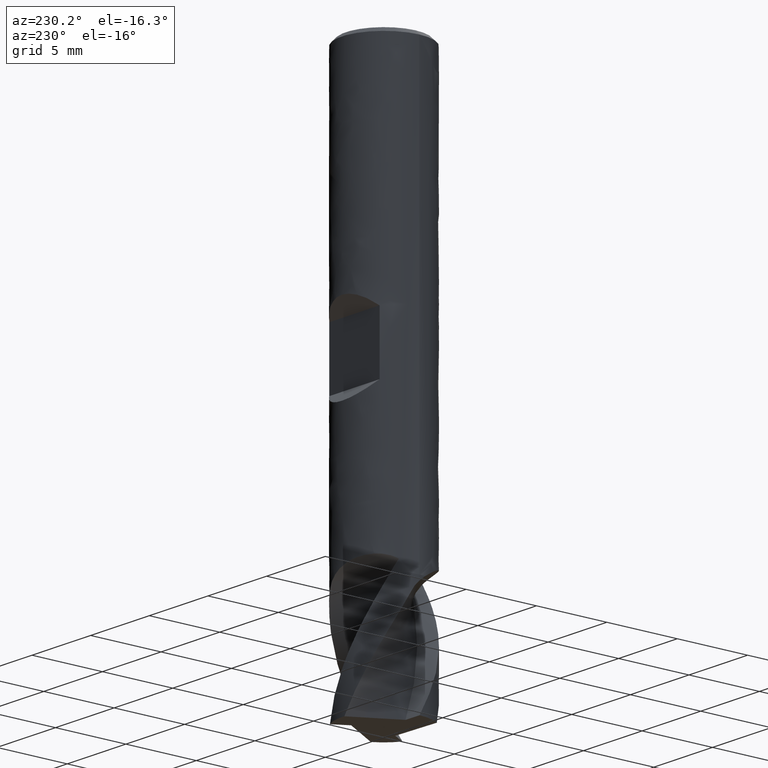
[diagram: clean part render]
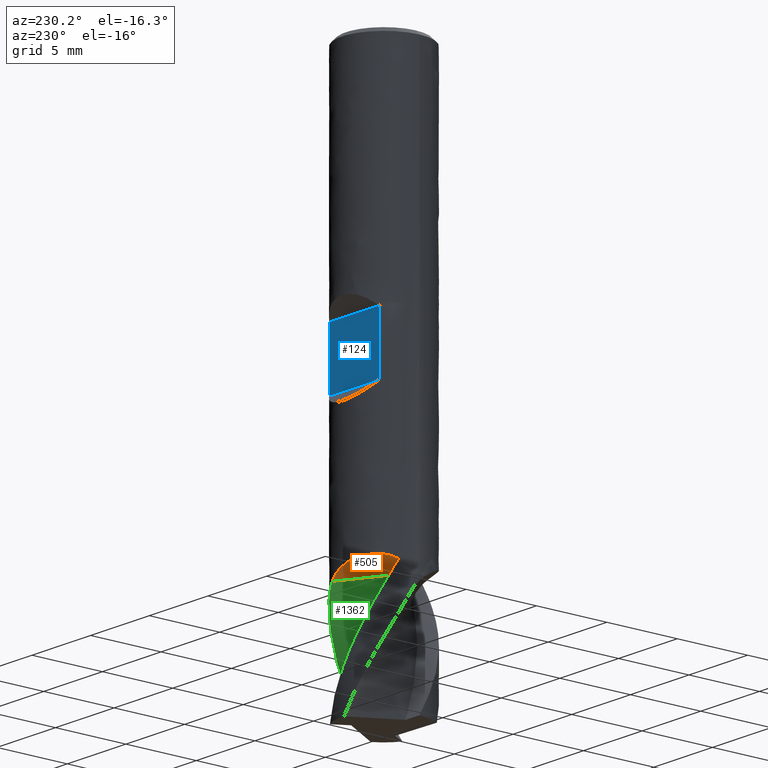
[diagram: same view with three faces highlighted in distinct colors, each labeled with its STEP entity id]
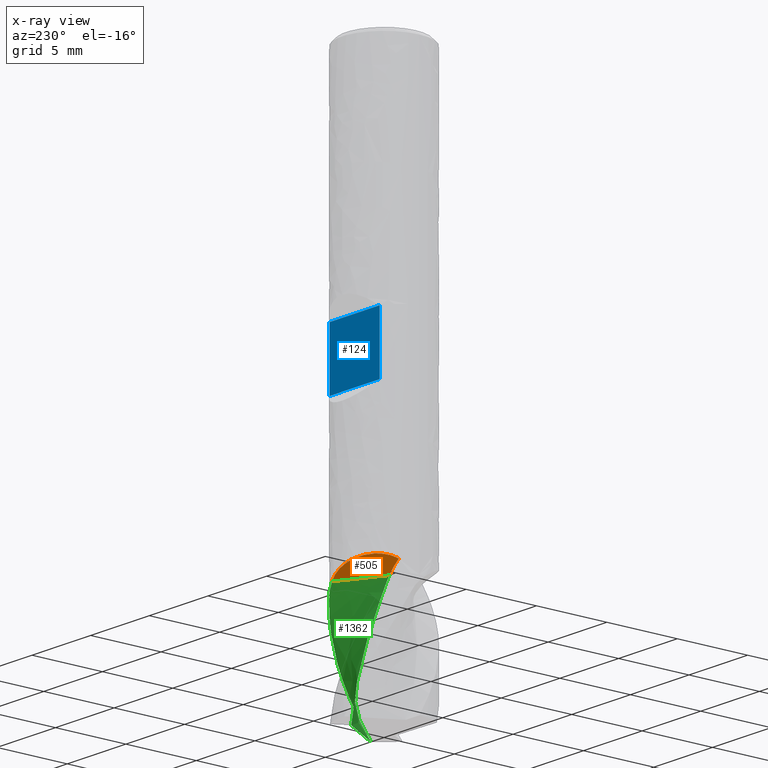
[diagram: x-ray of the same camera — body ghosted, the three highlighted faces saturated]
A machine part, auxiliary view with three faces highlighted in distinct colors.
The next image is the same camera in x-ray (body ghosted, the three faces saturated) — at least one of them is partly hidden behind the body in this view.
Their STEP definitions:

[orange] entity #505 — the highlighted face is a freeform B-spline surface patch.
#505 = ADVANCED_FACE('', (#506), #624, .T.);
#506 = FACE_OUTER_BOUND('', #507, .T.);
#507 = EDGE_LOOP('', (#508, #518, #527, #554, #563));
#508 = ORIENTED_EDGE('', *, *, #509, .T.);
#509 = EDGE_CURVE('', #510, #512, #514, .T.);
#510 = VERTEX_POINT('', #511);
#511 = CARTESIAN_POINT('', (1.08421758981709, 2.79722580746196, -31.));
#512 = VERTEX_POINT('', #513);
#513 = CARTESIAN_POINT('', (-1.84264580284255, 1.15677394449291, -31.));
#514 = LINE('', #515, #516);
#515 = CARTESIAN_POINT('', (1.08421758981709, 2.79722580746197, -31.));
#516 = VECTOR('', #517, 3.35523644979154);
#517 = DIRECTION('', (-2.92686339265964, -1.64045186296905, 0.));
#518 = ORIENTED_EDGE('', *, *, #519, .T.);
#519 = EDGE_CURVE('', #512, #520, #522, .T.);
#520 = VERTEX_POINT('', #521);
#521 = CARTESIAN_POINT('', (-2.73845348417943, 1.2251010223592, -30.2665562515059));
#522 = B_SPLINE_CURVE_WITH_KNOTS('', 3, (#523, #524, #525, #526), .UNSPECIFIED., .F., .U., (4, 4), (8.05, 8.78344374849406), .UNSPECIFIED.);
#523 = CARTESIAN_POINT('', (-1.84264580284255, 1.15677394449291, -31.));
#524 = CARTESIAN_POINT('', (-2.06418426553884, 1.17639858397631, -30.755518750502));
#525 = CARTESIAN_POINT('', (-2.35910194591767, 1.20854480990274, -30.511037501004));
#526 = CARTESIAN_POINT('', (-2.73845348417943, 1.2251010223592, -30.2665562515059));
#527 = ORIENTED_EDGE('', *, *, #528, .F.);
#528 = EDGE_CURVE('', #529, #520, #531, .T.);
#529 = VERTEX_POINT('', #530);
#530 = CARTESIAN_POINT('', (-1.93987165413749, 2.28842696310673, -30.));
#531 = B_SPLINE_CURVE_WITH_KNOTS('', 3, (#532, #533, #534, #535, #536, #537, #538, #539, #540, #541, #542, #543, #544, #545, #546, #547, #548, #549, #550, #551, #552, #553), .UNSPECIFIED., .F., .U., (4, 3, 3, 3, 3, 3, 3, 4), (0., 0.197226016520918, 0.393899486518892, 0.589971139167342, 0.785395426689096, 0.980136575221331, 1.17417893195694, 1.37790835287652), .UNSPECIFIED.);
#532 = CARTESIAN_POINT('', (-1.93987165413701, 2.28842696310714, -30.));
#533 = CARTESIAN_POINT('', (-1.99002021506912, 2.24591663902152, -30.0000739638594));
#534 = CARTESIAN_POINT('', (-2.03880853208514, 2.20172025702368, -30.0016086628134));
#535 = CARTESIAN_POINT('', (-2.08600341156098, 2.15605885053168, -30.0047216351087));
#536 = CARTESIAN_POINT('', (-2.13306607031353, 2.1105253685997, -30.0078258861306));
#537 = CARTESIAN_POINT('', (-2.17862158984341, 2.06345948129692, -30.0125046488564));
#538 = CARTESIAN_POINT('', (-2.22244796577227, 2.01512407544417, -30.0188894365669));
#539 = CARTESIAN_POINT('', (-2.26614023376374, 1.96693657508084, -30.0252546869396));
#540 = CARTESIAN_POINT('', (-2.30818948519674, 1.91740302058549, -30.0333265708887));
#541 = CARTESIAN_POINT('', (-2.34838810392225, 1.86683510609707, -30.0432524442842));
#542 = CARTESIAN_POINT('', (-2.38845399982142, 1.81643415049296, -30.0531455456589));
#543 = CARTESIAN_POINT('', (-2.42675500157084, 1.76491182133365, -30.0648987359457));
#544 = CARTESIAN_POINT('', (-2.46310158035882, 1.7126384921617, -30.0786766553282));
#545 = CARTESIAN_POINT('', (-2.49932110347004, 1.66054789334391, -30.0924064116393));
#546 = CARTESIAN_POINT('', (-2.53367132716824, 1.60760686385268, -30.1081743241931));
#547 = CARTESIAN_POINT('', (-2.56598521910623, 1.55425861919063, -30.1261623126092));
#548 = CARTESIAN_POINT('', (-2.59818315875179, 1.50110180461931, -30.1440857545295));
#549 = CARTESIAN_POINT('', (-2.62842895640027, 1.44742314046868, -30.164253189356));
#550 = CARTESIAN_POINT('', (-2.65658352480675, 1.39375893745129, -30.1868602151535));
#551 = CARTESIAN_POINT('', (-2.68614363742436, 1.33741568750953, -30.2105958384057));
#552 = CARTESIAN_POINT('', (-2.71346986001599, 1.28094661499943, -30.2370803259147));
#553 = CARTESIAN_POINT('', (-2.73845348417943, 1.2251010223592, -30.2665562515059));
#554 = ORIENTED_EDGE('', *, *, #555, .T.);
#555 = EDGE_CURVE('', #529, #556, #558, .T.);
#556 = VERTEX_POINT('', #557);
#557 = CARTESIAN_POINT('', (-1.93223280841265, 2.29488047054608, -30.));
#558 = CIRCLE('', #559, 3.);
#559 = AXIS2_PLACEMENT_3D('', #560, #561, #562);
#560 = CARTESIAN_POINT('', (-3.88578058618805E-16, 3.66883818935254E-15, -30.));
#561 = DIRECTION('', (3.74939945665464E-33, 6.12323399573677E-17, -1.));
#562 = DIRECTION('', (-1., -5.49390323586469E-16, -3.73898545197895E-32));
#563 = ORIENTED_EDGE('', *, *, #564, .T.);
#564 = EDGE_CURVE('', #556, #510, #565, .T.);
#565 = B_SPLINE_CURVE_WITH_KNOTS('', 3, (#566, #567, #568, #569, #570, #571, #572, #573, #574, #575, #576, #577, #578, #579, #580, #581, #582, #583, #584, #585, #586, #587, #588, #589, #590, #591, #592, #593, #594, #595, #596, #597, #598, #599, #600, #601, #602, #603, #604, #605, #606, #607, #608, #609, #610, #611, #612, #613, #614, #615, #616, #617, #618, #619, #620, #621, #622, #623), .UNSPECIFIED., .F., .U., (4, 3, 3, 3, 3, 3, 3, 3, 3, 3, 3, 3, 3, 3, 3, 3, 3, 3, 3, 4), (0., 0.196949325699326, 0.393389740212816, 0.589376722615618, 0.784961097838079, 0.980189460863168, 1.17510476218451, 1.36974696426702, 1.56415372783119, 1.75836111360703, 1.95240429971611, 2.14631832226932, 2.17222899204661, 2.36818907634758, 2.56401604487721, 2.75974978795876, 2.95543214839418, 3.15110755260272, 3.34682345938829, 3.40503989997963), .UNSPECIFIED.);
#566 = CARTESIAN_POINT('', (-1.93223280841116, 2.29488047054733, -30.));
#567 = CARTESIAN_POINT('', (-1.88201337775353, 2.33716399371194, -30.0000737656396));
#568 = CARTESIAN_POINT('', (-1.83036700808109, 2.37782637253965, -30.0015986456456));
#569 = CARTESIAN_POINT('', (-1.77753266000532, 2.41668732826868, -30.0044710612479));
#570 = CARTESIAN_POINT('', (-1.7248348343098, 2.4554478684467, -30.0073360546139));
#571 = CARTESIAN_POINT('', (-1.6708767366246, 2.492474420513, -30.0115459521142));
#572 = CARTESIAN_POINT('', (-1.61589940325674, 2.52762123716243, -30.0170087892969));
#573 = CARTESIAN_POINT('', (-1.56104897090551, 2.56268692643644, -30.0224590169267));
#574 = CARTESIAN_POINT('', (-1.50510607342435, 2.59593172509582, -30.0291642053448));
#575 = CARTESIAN_POINT('', (-1.44831192598942, 2.62724048481231, -30.0370422670829));
#576 = CARTESIAN_POINT('', (-1.39163444819896, 2.65848492836191, -30.0449041452756));
#577 = CARTESIAN_POINT('', (-1.3340321273285, 2.68784406254134, -30.0539448233842));
#578 = CARTESIAN_POINT('', (-1.27574475394404, 2.71523025225933, -30.064090738168));
#579 = CARTESIAN_POINT('', (-1.21756347807302, 2.74256659230212, -30.074218184864));
#580 = CARTESIAN_POINT('', (-1.15862373546572, 2.76797306511693, -30.0854600998782));
#581 = CARTESIAN_POINT('', (-1.0991625345947, 2.79138706068209, -30.0977504183503));
#582 = CARTESIAN_POINT('', (-1.03979668372592, 2.81476351034341, -30.1100210284769));
#583 = CARTESIAN_POINT('', (-0.979836640197697, 2.83618336451075, -30.1233520916197));
#584 = CARTESIAN_POINT('', (-0.919515487496237, 2.85560698770937, -30.1376842903214));
#585 = CARTESIAN_POINT('', (-0.859278851817177, 2.8750033961297, -30.1519964079288));
#586 = CARTESIAN_POINT('', (-0.798609505705072, 2.89243271228278, -30.1673241312462));
#587 = CARTESIAN_POINT('', (-0.737735659062085, 2.90787656157345, -30.1836143725557));
#588 = CARTESIAN_POINT('', (-0.676935445208425, 2.92330173003871, -30.199884909247));
#589 = CARTESIAN_POINT('', (-0.615860666023498, 2.93676427451604, -30.2171345305675));
#590 = CARTESIAN_POINT('', (-0.554733891839468, 2.94826564428049, -30.2353160641235));
#591 = CARTESIAN_POINT('', (-0.493669807455014, 2.95975521858256, -30.2534789512402));
#592 = CARTESIAN_POINT('', (-0.432485552663782, 2.96930060525954, -30.27259215134));
#593 = CARTESIAN_POINT('', (-0.371397470936242, 2.97692188654358, -30.2926142773561));
#594 = CARTESIAN_POINT('', (-0.310361038339465, 2.98453672413938, -30.3126194749407));
#595 = CARTESIAN_POINT('', (-0.249354795798488, 2.99023901783103, -30.3335536252406));
#596 = CARTESIAN_POINT('', (-0.188588455718147, 2.99406653138668, -30.3553811729584));
#597 = CARTESIAN_POINT('', (-0.127862564347802, 2.99789149718339, -30.3771941913143));
#598 = CARTESIAN_POINT('', (-0.0673130383891198, 2.99984823593763, -30.3999221023944));
#599 = CARTESIAN_POINT('', (-0.00714275278846962, 2.99999149683544, -30.4235354084508));
#600 = CARTESIAN_POINT('', (0.000897162943648185, 3.00001063926654, -30.4266906035601));
#601 = CARTESIAN_POINT('', (0.00893093922448734, 2.99999744595069, -30.4298618506688));
#602 = CARTESIAN_POINT('', (0.0169581010594698, 2.9999520700852, -30.4330490879514));
#603 = CARTESIAN_POINT('', (0.0776668099967913, 2.99960889646199, -30.457153879219));
#604 = CARTESIAN_POINT('', (0.138031302170571, 2.99742243499334, -30.4821869919228));
#605 = CARTESIAN_POINT('', (0.197849885454055, 2.99346879436313, -30.5081256096722));
#606 = CARTESIAN_POINT('', (0.25762783394764, 2.98951783944273, -30.5340466073072));
#607 = CARTESIAN_POINT('', (0.316919877197871, 2.98379821308459, -30.5608975068512));
#608 = CARTESIAN_POINT('', (0.375531303772091, 2.97640323879129, -30.5886630668026));
#609 = CARTESIAN_POINT('', (0.434114827772187, 2.96901178495177, -30.6164154086728));
#610 = CARTESIAN_POINT('', (0.492074757108199, 2.95993945261082, -30.6451081423841));
#611 = CARTESIAN_POINT('', (0.549222585152999, 2.94929729799454, -30.6747345773417));
#612 = CARTESIAN_POINT('', (0.606355411151758, 2.93865793708186, -30.7043532349759));
#613 = CARTESIAN_POINT('', (0.662730180097242, 2.92643953176924, -30.7349327509286));
#614 = CARTESIAN_POINT('', (0.718163266229727, 2.91277213716389, -30.7664763077004));
#615 = CARTESIAN_POINT('', (0.773594381795612, 2.89910522841478, -30.7980187431441));
#616 = CARTESIAN_POINT('', (0.828134990540157, 2.88397670385231, -30.8305540197396));
#617 = CARTESIAN_POINT('', (0.88160422334987, 2.86753796720666, -30.8640969367504));
#618 = CARTESIAN_POINT('', (0.935084523680966, 2.85109582793, -30.8976467967624));
#619 = CARTESIAN_POINT('', (0.987542013814842, 2.83332764354849, -30.9322351511996));
#620 = CARTESIAN_POINT('', (1.03879523741967, 2.81441014330077, -30.9678906532829));
#621 = CARTESIAN_POINT('', (1.05404070364727, 2.80878306092715, -30.9784965179409));
#622 = CARTESIAN_POINT('', (1.06918465658113, 2.8030526415336, -30.989200389604));
#623 = CARTESIAN_POINT('', (1.08421758981709, 2.79722580746196, -31.));
#624 = B_SPLINE_SURFACE_WITH_KNOTS('', 3, 1, ((#625, #626), (#627, #628), (#629, #630), (#631, #632)), .UNSPECIFIED., .F., .F., .U., (4, 4), (2, 2), (8.04999999999996, 9.05), (0., 0.738473241205311), .UNSPECIFIED.);
#625 = CARTESIAN_POINT('', (-1.84264580284251, 1.15677394449291, -31.));
#626 = CARTESIAN_POINT('', (1.0842175898171, 2.79722580746191, -31.));
#627 = CARTESIAN_POINT('', (-2.14469822765513, 1.18353078784141, -30.6666666666667));
#628 = CARTESIAN_POINT('', (1.04144802169509, 3.2131624321148, -30.6666666666667));
#629 = CARTESIAN_POINT('', (-2.58315853106369, 1.23356456296016, -30.3333333333333));
#630 = CARTESIAN_POINT('', (0.994518027167603, 3.81986480571484, -30.3333333333333));
#631 = CARTESIAN_POINT('', (-3.18604516772584, 1.23562522704, -30.));
#632 = CARTESIAN_POINT('', (0.839636905511188, 4.63663241371392, -30.));

[blue] entity #124 — the highlighted planar face has unit normal (0, 1, 0).
#124 = ADVANCED_FACE('', (#125), #159, .T.);
#125 = FACE_OUTER_BOUND('', #126, .T.);
#126 = EDGE_LOOP('', (#127, #137, #145, #153));
#127 = ORIENTED_EDGE('', *, *, #128, .T.);
#128 = EDGE_CURVE('', #129, #131, #133, .T.);
#129 = VERTEX_POINT('', #130);
#130 = CARTESIAN_POINT('', (2.14242852856286, 2.1, -15.9));
#131 = VERTEX_POINT('', #132);
#132 = CARTESIAN_POINT('', (2.14242852856286, 2.1, -20.1));
#133 = LINE('', #134, #135);
#134 = CARTESIAN_POINT('', (2.14242852856286, 2.1, -15.9));
#135 = VECTOR('', #136, 4.2);
#136 = DIRECTION('', (0., 4.44089209850063E-16, -4.2));
#137 = ORIENTED_EDGE('', *, *, #138, .T.);
#138 = EDGE_CURVE('', #131, #139, #141, .T.);
#139 = VERTEX_POINT('', #140);
#140 = CARTESIAN_POINT('', (-2.14242852856286, 2.1, -20.1));
#141 = LINE('', #142, #143);
#142 = CARTESIAN_POINT('', (2.14242852856286, 2.1, -20.1));
#143 = VECTOR('', #144, 4.28485705712571);
#144 = DIRECTION('', (-4.28485705712571, 4.44089209850063E-16, 0.));
#145 = ORIENTED_EDGE('', *, *, #146, .F.);
#146 = EDGE_CURVE('', #147, #139, #149, .T.);
#147 = VERTEX_POINT('', #148);
#148 = CARTESIAN_POINT('', (-2.14242852856286, 2.1, -15.9));
#149 = LINE('', #150, #151);
#150 = CARTESIAN_POINT('', (-2.14242852856286, 2.1, -15.9));
#151 = VECTOR('', #152, 4.2);
#152 = DIRECTION('', (-8.88178419700125E-16, 4.44089209850063E-16, -4.2));
#153 = ORIENTED_EDGE('', *, *, #154, .F.);
#154 = EDGE_CURVE('', #129, #147, #155, .T.);
#155 = LINE('', #156, #157);
#156 = CARTESIAN_POINT('', (2.14242852856286, 2.1, -15.9));
#157 = VECTOR('', #158, 4.28485705712571);
#158 = DIRECTION('', (-4.28485705712571, 4.44089209850063E-16, 0.));
#159 = PLANE('', #160);
#160 = AXIS2_PLACEMENT_3D('', #161, #162, #163);
#161 = CARTESIAN_POINT('', (3., 2.1, -20.1));
#162 = DIRECTION('', (7.40148683083438E-17, 1., 1.05735526154777E-16));
#163 = DIRECTION('', (-1., 7.40148683083438E-17, 0.));

[green] entity #1362 — the highlighted face is a freeform B-spline surface patch.
#971 = VERTEX_POINT('', #972);
#972 = CARTESIAN_POINT('', (-1.84264580284255, 1.15677394449291, -31.));
#1040 = VERTEX_POINT('', #1041);
#1041 = CARTESIAN_POINT('', (1.08421758981709, 2.79722580746196, -31.));
#1048 = EDGE_CURVE('', #1040, #971, #1049, .T.);
#1049 = LINE('', #1050, #1051);
#1050 = CARTESIAN_POINT('', (1.08421758981709, 2.79722580746197, -31.));
#1051 = VECTOR('', #1052, 3.35523644979154);
#1052 = DIRECTION('', (-2.92686339265964, -1.64045186296905, 0.));
#1299 = EDGE_CURVE('', #1300, #971, #1302, .T.);
#1300 = VERTEX_POINT('', #1301);
#1301 = CARTESIAN_POINT('', (0.893725716362672, 1.5826108539826, -39.));
#1302 = B_SPLINE_CURVE_WITH_KNOTS('', 3, (#1303, #1304, #1305, #1306, #1307, #1308, #1309, #1310, #1311, #1312, #1313, #1314, #1315, #1316, #1317, #1318, #1319), .UNSPECIFIED., .F., .U., (4, 1, 1, 1, 1, 1, 1, 1, 1, 1, 1, 1, 1, 1, 4), (0.0499999999999836, 1.13125, 1.696875, 2.2625, 2.828125, 3.39375, 3.959375, 4.525, 5.090625, 5.65625, 6.221875, 6.7875, 7.353125, 7.91875, 8.05), .UNSPECIFIED.);
#1303 = CARTESIAN_POINT('', (0.893725716362677, 1.5826108539826, -39.));
#1304 = CARTESIAN_POINT('', (0.783370736321726, 1.64103929327569, -38.6395833333333));
#1305 = CARTESIAN_POINT('', (0.607009209541451, 1.71316170886393, -38.090625));
#1306 = CARTESIAN_POINT('', (0.359884467490566, 1.77336629202861, -37.353125));
#1307 = CARTESIAN_POINT('', (0.166892573690512, 1.79983246189657, -36.7875));
#1308 = CARTESIAN_POINT('', (-0.0276296173809434, 1.80637262506078, -36.221875));
#1309 = CARTESIAN_POINT('', (-0.221747427467212, 1.79294764364282, -35.65625));
#1310 = CARTESIAN_POINT('', (-0.413514318157955, 1.75968575191094, -35.090625));
#1311 = CARTESIAN_POINT('', (-0.601066496960992, 1.70691093249699, -34.525));
#1312 = CARTESIAN_POINT('', (-0.782333878885828, 1.63503558672537, -33.959375));
#1313 = CARTESIAN_POINT('', (-0.956184014551469, 1.54495090074255, -33.39375));
#1314 = CARTESIAN_POINT('', (-1.11821742970047, 1.43655713291151, -32.828125));
#1315 = CARTESIAN_POINT('', (-1.27652393076581, 1.31423139807588, -32.2625));
#1316 = CARTESIAN_POINT('', (-1.36302406701288, 1.13552820727793, -31.696875));
#1317 = CARTESIAN_POINT('', (-1.60498516384665, 1.13674495452228, -31.2760416666667));
#1318 = CARTESIAN_POINT('', (-1.8030014220859, 1.15326210880342, -31.04375));
#1319 = CARTESIAN_POINT('', (-1.84264580284255, 1.15677394449291, -31.));
#1362 = ADVANCED_FACE('', (#1363), #1487, .T.);
#1363 = FACE_OUTER_BOUND('', #1364, .T.);
#1364 = EDGE_LOOP('', (#1365, #1366, #1480, #1486));
#1365 = ORIENTED_EDGE('', *, *, #1048, .F.);
#1366 = ORIENTED_EDGE('', *, *, #1367, .T.);
#1367 = EDGE_CURVE('', #1040, #1368, #1370, .T.);
#1368 = VERTEX_POINT('', #1369);
#1369 = CARTESIAN_POINT('', (2.69791948437325, -1.31195672788366, -39.));
#1370 = B_SPLINE_CURVE_WITH_KNOTS('', 3, (#1371, #1372, #1373, #1374, #1375, #1376, #1377, #1378, #1379, #1380, #1381, #1382, #1383, #1384, #1385, #1386, #1387, #1388, #1389, #1390, #1391, #1392, #1393, #1394, #1395, #1396, #1397, #1398, #1399, #1400, #1401, #1402, #1403, #1404, #1405, #1406, #1407, #1408, #1409, #1410, #1411, #1412, #1413, #1414, #1415, #1416, #1417, #1418, #1419, #1420, #1421, #1422, #1423, #1424, #1425, #1426, #1427, #1428, #1429, #1430, #1431, #1432, #1433, #1434, #1435, #1436, #1437, #1438, #1439, #1440, #1441, #1442, #1443, #1444, #1445, #1446, #1447, #1448, #1449, #1450, #1451, #1452, #1453, #1454, #1455, #1456, #1457, #1458, #1459, #1460, #1461, #1462, #1463, #1464, #1465, #1466, #1467, #1468, #1469, #1470, #1471, #1472, #1473, #1474, #1475, #1476, #1477, #1478, #1479), .UNSPECIFIED., .F., .U., (4, 3, 3, 3, 3, 3, 3, 3, 3, 3, 3, 3, 3, 3, 3, 3, 3, 3, 3, 3, 3, 3, 3, 3, 3, 3, 3, 3, 3, 3, 3, 3, 3, 3, 3, 3, 4), (3.40503989997963, 3.47761742576379, 3.60844895575092, 3.73933193930797, 3.87029548682506, 4.00135525134359, 4.13252397006161, 4.26380986134629, 4.39521366195404, 4.45361228317764, 4.54123511677125, 4.62883266868287, 4.71640572541453, 4.80395985829023, 4.89150456706646, 4.97905219120592, 5.11039865042747, 5.24182608262073, 5.37325321147449, 5.57039665974011, 5.76744650999015, 6.06284872158619, 6.35831367010135, 6.55534831111203, 6.99852828386313, 7.44154870593723, 7.88452144376341, 8.32742560285122, 8.99121331858849, 9.65475852505677, 10.0973570071098, 10.1362788338178, 10.8030576914267, 11.4695350922493, 12.135728580251, 12.8016524448311, 12.8710669454147), .UNSPECIFIED.);
#1371 = CARTESIAN_POINT('', (1.08421758981709, 2.79722580746196, -31.));
#1372 = CARTESIAN_POINT('', (1.1029589125167, 2.78996158457615, -31.0134637053384));
#1373 = CARTESIAN_POINT('', (1.12153627957443, 2.78254415764813, -31.0270823744474));
#1374 = CARTESIAN_POINT('', (1.13993452194367, 2.77498635774716, -31.0408541503128));
#1375 = CARTESIAN_POINT('', (1.17310002562038, 2.76136232587645, -31.0656797762574));
#1376 = CARTESIAN_POINT('', (1.20570355479477, 2.7472735123234, -31.0910175691423));
#1377 = CARTESIAN_POINT('', (1.23768759799336, 2.73278784573117, -31.1168838217919));
#1378 = CARTESIAN_POINT('', (1.2696842199121, 2.71829648219983, -31.1427602471503));
#1379 = CARTESIAN_POINT('', (1.30107479970759, 2.7034015576562, -31.1691767129285));
#1380 = CARTESIAN_POINT('', (1.33179824781887, 2.68818031893447, -31.1961536743672));
#1381 = CARTESIAN_POINT('', (1.36254060749969, 2.67294971090258, -31.2231472412559));
#1382 = CARTESIAN_POINT('', (1.39262918901622, 2.65738525087257, -31.2507142841181));
#1383 = CARTESIAN_POINT('', (1.42199744243549, 2.64157590723926, -31.2788796369141));
#1384 = CARTESIAN_POINT('', (1.45138727228068, 2.6257549487126, -31.3070656823826));
#1385 = CARTESIAN_POINT('', (1.48007046279382, 2.60968065287748, -31.3358648125052));
#1386 = CARTESIAN_POINT('', (1.50797186447845, 2.59345731716205, -31.3653068428102));
#1387 = CARTESIAN_POINT('', (1.53589646149611, 2.57722049446562, -31.3947733492224));
#1388 = CARTESIAN_POINT('', (1.56305374755022, 2.56082499643363, -31.4249000989683));
#1389 = CARTESIAN_POINT('', (1.58935513967613, 2.54439584970285, -31.4557223707851));
#1390 = CARTESIAN_POINT('', (1.61568002674544, 2.52795202687163, -31.4865721760317));
#1391 = CARTESIAN_POINT('', (1.64116497254438, 2.51146328233507, -31.5181386740175));
#1392 = CARTESIAN_POINT('', (1.6657004630433, 2.49508355920545, -31.5504624090808));
#1393 = CARTESIAN_POINT('', (1.69025798913986, 2.47868912526383, -31.5828151744511));
#1394 = CARTESIAN_POINT('', (1.71388452696581, 2.46239004933716, -31.6159523175281));
#1395 = CARTESIAN_POINT('', (1.73643797292068, 2.44638164769914, -31.6499173603208));
#1396 = CARTESIAN_POINT('', (1.74646120011437, 2.43926717628103, -31.6650121419003));
#1397 = CARTESIAN_POINT('', (1.75627512887817, 2.43220853861588, -31.6802750534202));
#1398 = CARTESIAN_POINT('', (1.76586435777499, 2.42522639560518, -31.6957097411725));
#1399 = CARTESIAN_POINT('', (1.78025229006366, 2.41475020383328, -31.7188683543067));
#1400 = CARTESIAN_POINT('', (1.79413751531616, 2.40444420297993, -31.7424251836869));
#1401 = CARTESIAN_POINT('', (1.80752463002917, 2.394338052957, -31.7663361736969));
#1402 = CARTESIAN_POINT('', (1.82090788217847, 2.38423481884606, -31.7902402647056));
#1403 = CARTESIAN_POINT('', (1.83379937453263, 2.37432693025387, -31.8145096354948));
#1404 = CARTESIAN_POINT('', (1.84622504425696, 2.36462535847868, -31.8390875642427));
#1405 = CARTESIAN_POINT('', (1.85864723935203, 2.35492649958463, -31.8636586201868));
#1406 = CARTESIAN_POINT('', (1.8706087562518, 2.34543023126228, -31.8885479063757));
#1407 = CARTESIAN_POINT('', (1.88216118375993, 2.33612270190336, -31.9136880515809));
#1408 = CARTESIAN_POINT('', (1.8937111148784, 2.32681718382909, -31.9388227641964));
#1409 = CARTESIAN_POINT('', (1.90485572031787, 2.31769762631606, -31.964215688841));
#1410 = CARTESIAN_POINT('', (1.91567370136932, 2.30872134955308, -31.989791949224));
#1411 = CARTESIAN_POINT('', (1.92649051800139, 2.29974603897322, -32.0153654566448));
#1412 = CARTESIAN_POINT('', (1.93698313269452, 2.2909121904901, -32.0411268731681));
#1413 = CARTESIAN_POINT('', (1.94725479477815, 2.28214784013077, -32.0669966069255));
#1414 = CARTESIAN_POINT('', (1.95752679892273, 2.27338319790612, -32.0928672021817));
#1415 = CARTESIAN_POINT('', (1.96757925098195, 2.26468697635725, -32.1188481695072));
#1416 = CARTESIAN_POINT('', (1.97753306738958, 2.25596165024602, -32.1448560710866));
#1417 = CARTESIAN_POINT('', (1.99246663701793, 2.24287116719149, -32.1838753570787));
#1418 = CARTESIAN_POINT('', (2.0071813304323, 2.22971552398983, -32.2229587495367));
#1419 = CARTESIAN_POINT('', (2.02210618048562, 2.21609715374617, -32.261800296501));
#1420 = CARTESIAN_POINT('', (2.03704023146806, 2.2024703879971, -32.3006657886519));
#1421 = CARTESIAN_POINT('', (2.05218667855315, 2.18837224897906, -32.3392871878382));
#1422 = CARTESIAN_POINT('', (2.06744272584587, 2.17386305349419, -32.3777056387576));
#1423 = CARTESIAN_POINT('', (2.08269873792705, 2.15935389149709, -32.4161240010057));
#1424 = CARTESIAN_POINT('', (2.09806610850816, 2.14443194936941, -32.4543440414873));
#1425 = CARTESIAN_POINT('', (2.11344890810348, 2.12916267880974, -32.4924156988913));
#1426 = CARTESIAN_POINT('', (2.13652342995181, 2.10625845289468, -32.5495239830582));
#1427 = CARTESIAN_POINT('', (2.15963461904569, 2.08256750563963, -32.606304639755));
#1428 = CARTESIAN_POINT('', (2.18248438617708, 2.05833959882557, -32.6629552347848));
#1429 = CARTESIAN_POINT('', (2.20532330489895, 2.03412319472194, -32.7195789337483));
#1430 = CARTESIAN_POINT('', (2.2279039257949, 2.0093667706988, -32.7760783494518));
#1431 = CARTESIAN_POINT('', (2.24994863706543, 1.98437172187255, -32.8326784551016));
#1432 = CARTESIAN_POINT('', (2.28299639860926, 1.94690103771391, -32.9175290467884));
#1433 = CARTESIAN_POINT('', (2.31486367558965, 1.90888614541008, -33.0026080361316));
#1434 = CARTESIAN_POINT('', (2.34565935826662, 1.87026259519252, -33.0877882974662));
#1435 = CARTESIAN_POINT('', (2.37646158126786, 1.83163084218415, -33.172986649211));
#1436 = CARTESIAN_POINT('', (2.40619770786897, 1.79238338704391, -33.2582997660662));
#1437 = CARTESIAN_POINT('', (2.43496673519197, 1.75240891304186, -33.3435894660158));
#1438 = CARTESIAN_POINT('', (2.45415173496708, 1.72575141551409, -33.4004660109187));
#1439 = CARTESIAN_POINT('', (2.47291471891139, 1.69875688494742, -33.4573295233247));
#1440 = CARTESIAN_POINT('', (2.49124273055466, 1.67143939688479, -33.5141755133861));
#1441 = CARTESIAN_POINT('', (2.53246699274013, 1.6099955636932, -33.6420363006934));
#1442 = CARTESIAN_POINT('', (2.57148164612261, 1.54691968751647, -33.7698545014037));
#1443 = CARTESIAN_POINT('', (2.6080597275569, 1.48257359260707, -33.8977012432056));
#1444 = CARTESIAN_POINT('', (2.64462464039601, 1.41825066314655, -34.0255019584822));
#1445 = CARTESIAN_POINT('', (2.67875691611819, 1.35266624752428, -34.1533927595073));
#1446 = CARTESIAN_POINT('', (2.71038720098913, 1.28600202982513, -34.2813101628896));
#1447 = CARTESIAN_POINT('', (2.74201408135257, 1.21934498749064, -34.4092137979559));
#1448 = CARTESIAN_POINT('', (2.77115562398398, 1.15157458645673, -34.5371805245974));
#1449 = CARTESIAN_POINT('', (2.79774790895294, 1.08286963109576, -34.6651463020789));
#1450 = CARTESIAN_POINT('', (2.82433607704246, 1.01417531227911, -34.7930922685634));
#1451 = CARTESIAN_POINT('', (2.84837948117786, 0.944533767287181, -34.9210870740968));
#1452 = CARTESIAN_POINT('', (2.86981154099419, 0.874174879058294, -35.0490960742449));
#1453 = CARTESIAN_POINT('', (2.9019321199888, 0.768726861149734, -35.2409452589018));
#1454 = CARTESIAN_POINT('', (2.92820245468424, 0.661604676515812, -35.4329488400303));
#1455 = CARTESIAN_POINT('', (2.94849070610625, 0.553536408924984, -35.6249560329254));
#1456 = CARTESIAN_POINT('', (2.96877154538594, 0.445507623168413, -35.8168930776047));
#1457 = CARTESIAN_POINT('', (2.98308970481225, 0.336451027679032, -36.0089756898587));
#1458 = CARTESIAN_POINT('', (2.99139084753794, 0.227114062240594, -36.2010638965042));
#1459 = CARTESIAN_POINT('', (2.99692788274501, 0.15418402753669, -36.3291907337608));
#1460 = CARTESIAN_POINT('', (2.99979249382229, 0.0810985663314765, -36.4573723208488));
#1461 = CARTESIAN_POINT('', (2.99998912322437, 0.00807839932013406, -36.5855672961509));
#1462 = CARTESIAN_POINT('', (3.0000064146879, 0.0016570526552871, -36.5968406800775));
#1463 = CARTESIAN_POINT('', (3.00000308789866, -0.00476389347848745, -36.6081143426265));
#1464 = CARTESIAN_POINT('', (2.99997915186515, -0.011184291415392, -36.6193882547488));
#1465 = CARTESIAN_POINT('', (2.99956909811295, -0.121173620382177, -36.8125242630373));
#1466 = CARTESIAN_POINT('', (2.99310143163114, -0.231045657268868, -37.0058078686011));
#1467 = CARTESIAN_POINT('', (2.98066449721654, -0.340057576055642, -37.1990979680709));
#1468 = CARTESIAN_POINT('', (2.96823318565312, -0.449020209562396, -37.3923006793286));
#1469 = CARTESIAN_POINT('', (2.94982896095236, -0.557204535563072, -37.585650561718));
#1470 = CARTESIAN_POINT('', (2.92561969306245, -0.663889607965939, -37.7790074527767));
#1471 = CARTESIAN_POINT('', (2.90142073808267, -0.770529233576731, -37.9722819757006));
#1472 = CARTESIAN_POINT('', (2.87140337808807, -0.87575128133523, -38.1657015845539));
#1473 = CARTESIAN_POINT('', (2.8358132651091, -0.978858072159216, -38.3591310909073));
#1474 = CARTESIAN_POINT('', (2.80023755624576, -1.08192313335625, -38.5524823120083));
#1475 = CARTESIAN_POINT('', (2.7590702172835, -1.1829458420404, -38.7459836997586));
#1476 = CARTESIAN_POINT('', (2.71261803162245, -1.28128974651271, -38.9394866803619));
#1477 = CARTESIAN_POINT('', (2.70777595366102, -1.2915409079104, -38.9596570233612));
#1478 = CARTESIAN_POINT('', (2.70287631393265, -1.30176345948935, -38.9798281908135));
#1479 = CARTESIAN_POINT('', (2.69791948437325, -1.31195672788366, -39.));
#1480 = ORIENTED_EDGE('', *, *, #1481, .T.);
#1481 = EDGE_CURVE('', #1368, #1300, #1482, .T.);
#1482 = LINE('', #1483, #1484);
#1483 = CARTESIAN_POINT('', (2.69791948437325, -1.31195672788366, -39.));
#1484 = VECTOR('', #1485, 3.41081172721674);
#1485 = DIRECTION('', (-1.80419376801057, 2.89456758186626, -7.105427357601E-15));
#1486 = ORIENTED_EDGE('', *, *, #1299, .T.);
#1487 = B_SPLINE_SURFACE_WITH_KNOTS('', 3, 1, ((#1488, #1489), (#1490, #1491), (#1492, #1493), (#1494, #1495), (#1496, #1497), (#1498, #1499), (#1500, #1501), (#1502, #1503), (#1504, #1505), (#1506, #1507), (#1508, #1509), (#1510, #1511), (#1512, #1513), (#1514, #1515), (#1516, #1517), (#1518, #1519), (#1520, #1521)), .UNSPECIFIED., .F., .F., .U., (4, 1, 1, 1, 1, 1, 1, 1, 1, 1, 1, 1, 1, 1, 4), (2, 2), (0.049999999999989, 1.13125, 1.696875, 2.2625, 2.828125, 3.39375, 3.959375, 4.525, 5.090625, 5.65625, 6.221875, 6.7875, 7.353125, 7.91875, 8.05000000000013), (0., 0.906085561071148), .UNSPECIFIED.);
#1488 = CARTESIAN_POINT('', (0.893725716362676, 1.5826108539826, -39.));
#1489 = CARTESIAN_POINT('', (2.71289862912002, -1.33598859605486, -39.));
#1490 = CARTESIAN_POINT('', (0.783370736321725, 1.64103929327569, -38.6395833333333));
#1491 = CARTESIAN_POINT('', (2.79959350595202, -1.14718438961426, -38.6395833333333));
#1492 = CARTESIAN_POINT('', (0.60700920954145, 1.71316170886393, -38.090625));
#1493 = CARTESIAN_POINT('', (2.90283725767163, -0.847446893022632, -38.090625));
#1494 = CARTESIAN_POINT('', (0.359884467490566, 1.77336629202861, -37.353125));
#1495 = CARTESIAN_POINT('', (2.97963793262215, -0.431279852354923, -37.353125));
#1496 = CARTESIAN_POINT('', (0.166892573690512, 1.79983246189657, -36.7875));
#1497 = CARTESIAN_POINT('', (3.00547766688417, -0.108204488171835, -36.7875));
#1498 = CARTESIAN_POINT('', (-0.0276296173809434, 1.80637262506078, -36.221875));
#1499 = CARTESIAN_POINT('', (2.99807346136906, 0.21554160008481, -36.221875));
#1500 = CARTESIAN_POINT('', (-0.221747427467212, 1.79294764364282, -35.65625));
#1501 = CARTESIAN_POINT('', (2.95754199614453, 0.536740932741498, -35.65625));
#1502 = CARTESIAN_POINT('', (-0.413514318157955, 1.75968575191094, -35.090625));
#1503 = CARTESIAN_POINT('', (2.88427909650788, 0.852172047210171, -35.090625));
#1504 = CARTESIAN_POINT('', (-0.601066496960992, 1.70691093249699, -34.525));
#1505 = CARTESIAN_POINT('', (2.77899798545732, 1.15876931845026, -34.525));
#1506 = CARTESIAN_POINT('', (-0.782333878885828, 1.63503558672537, -33.959375));
#1507 = CARTESIAN_POINT('', (2.64257813715321, 1.45313274101395, -33.959375));
#1508 = CARTESIAN_POINT('', (-0.956184014551469, 1.54495090074255, -33.39375));
#1509 = CARTESIAN_POINT('', (2.47660630492626, 1.7334648340881, -33.39375));
#1510 = CARTESIAN_POINT('', (-1.11821742970047, 1.43655713291151, -32.828125));
#1511 = CARTESIAN_POINT('', (2.28132997642817, 1.99244801364106, -32.828125));
#1512 = CARTESIAN_POINT('', (-1.27652393076581, 1.31423139807588, -32.2625));
#1513 = CARTESIAN_POINT('', (2.06326047638486, 2.24393179142557, -32.2625));
#1514 = CARTESIAN_POINT('', (-1.36302406701288, 1.13552820727793, -31.696875));
#1515 = CARTESIAN_POINT('', (1.75828283297311, 2.37083927641461, -31.696875));
#1516 = CARTESIAN_POINT('', (-1.60498516384667, 1.13674495452228, -31.2760416666666));
#1517 = CARTESIAN_POINT('', (1.73758040035558, 2.77288888288312, -31.2760416666666));
#1518 = CARTESIAN_POINT('', (-1.80300142208597, 1.15326210880343, -31.0437499999999));
#1519 = CARTESIAN_POINT('', (1.74642139873849, 3.10337614831472, -31.0437499999999));
#1520 = CARTESIAN_POINT('', (-1.84264580284267, 1.15677394449292, -30.9999999999999));
#1521 = CARTESIAN_POINT('', (1.74853192891674, 3.16956149552541, -30.9999999999999));